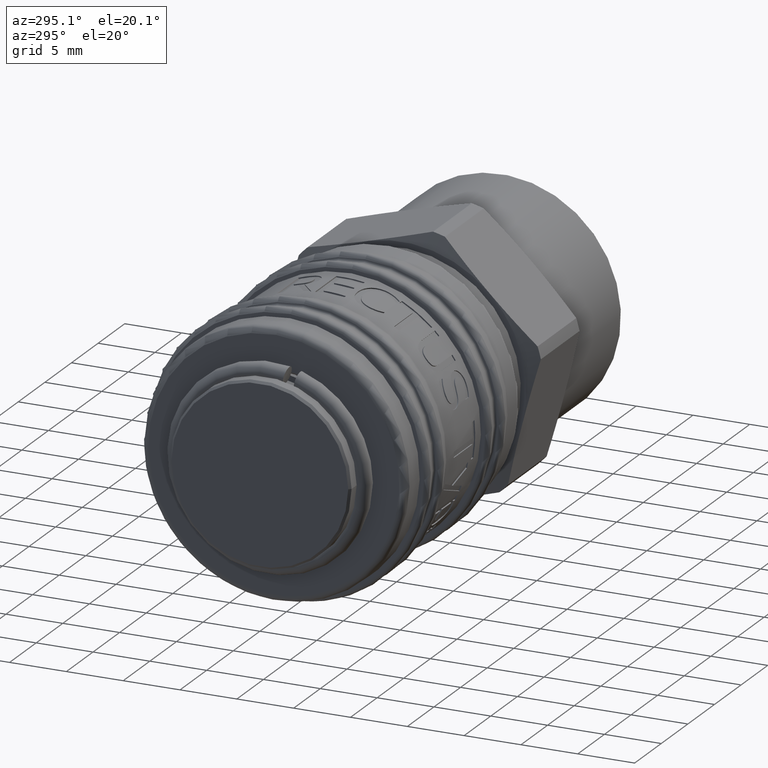
[diagram: clean part render]
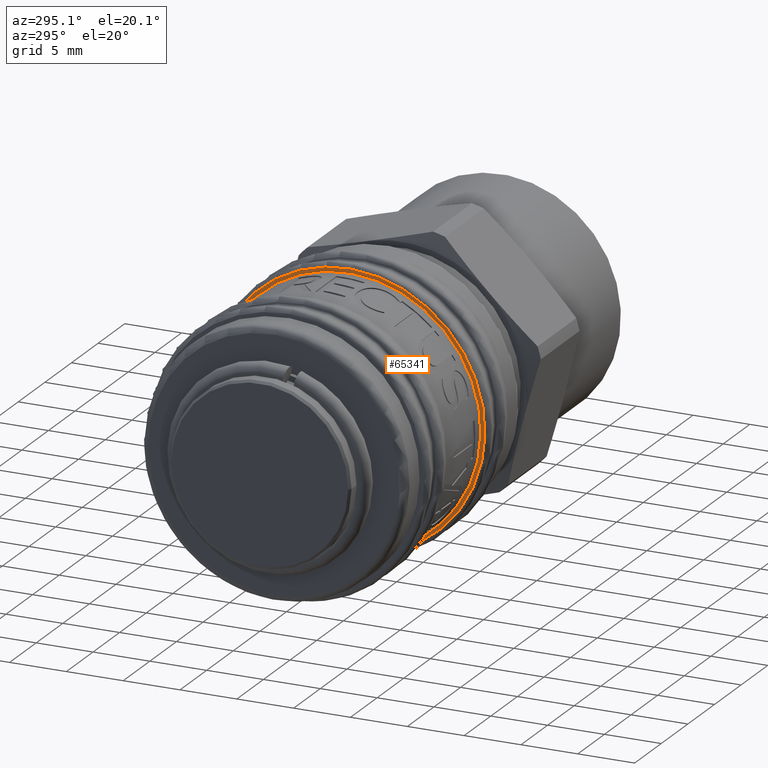
[diagram: same view with one face highlighted and labeled with its STEP entity id]
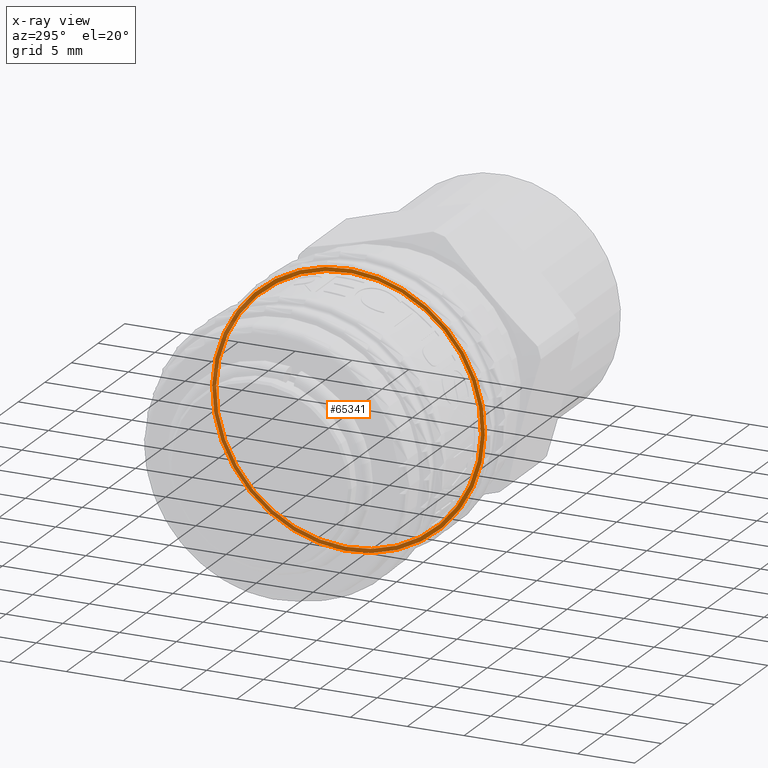
[diagram: x-ray of the same camera — body ghosted, the highlighted face saturated]
A machine part, auxiliary view. The second image highlights one B-rep face of the part: STEP entity #65341.
The next image is the same camera in x-ray: the body ghosted, the highlighted face saturated — about 46% of this face is hidden behind the body in this view.
In plain terms, the highlighted planar face has unit normal (-1, 0, 0).
Its self-contained STEP definition (entity closure, byte-faithful):
#64586=CARTESIAN_POINT('',(16.649999999999984,-2.536799307572853,11.370118888008406));
#64587=VERTEX_POINT('',#64586);
#64588=CARTESIAN_POINT('',(16.649999999999984,2.622867E-014,6.645266E-015));
#64589=DIRECTION('',(-1.0,1.011028E-017,-4.531501E-017));
#64590=DIRECTION('',(-4.642917E-017,-0.217757066914948,0.97600300194651));
#64591=AXIS2_PLACEMENT_3D('',#64588,#64589,#64590);
#64592=CIRCLE('',#64591,11.649676143753851);
#64593=EDGE_CURVE('',#64587,#64587,#64592,.T.);
#65315=CARTESIAN_POINT('',(16.649999999999988,-2.613084802979349,11.712036023358127));
#65316=VERTEX_POINT('',#65315);
#65317=CARTESIAN_POINT('',(16.649999999999988,2.622867E-014,6.645266E-015));
#65318=DIRECTION('',(-1.0,1.011028E-017,-4.531501E-017));
#65319=DIRECTION('',(-4.642917E-017,-0.217757066914948,0.97600300194651));
#65320=AXIS2_PLACEMENT_3D('',#65317,#65318,#65319);
#65321=CIRCLE('',#65320,12.000000000000002);
#65322=EDGE_CURVE('',#65316,#65316,#65321,.T.);
#65330=CARTESIAN_POINT('',(16.649999999999984,-2.574942055276101,11.541077455683267));
#65331=DIRECTION('',(-1.0,0.0,0.0));
#65332=DIRECTION('',(0.0,0.97600300194651,0.217757066914948));
#65333=AXIS2_PLACEMENT_3D('',#65330,#65331,#65332);
#65334=PLANE('',#65333);
#65335=ORIENTED_EDGE('',*,*,#65322,.T.);
#65336=EDGE_LOOP('',(#65335));
#65337=FACE_OUTER_BOUND('',#65336,.T.);
#65338=ORIENTED_EDGE('',*,*,#64593,.F.);
#65339=EDGE_LOOP('',(#65338));
#65340=FACE_BOUND('',#65339,.T.);
#65341=ADVANCED_FACE('',(#65337,#65340),#65334,.T.);